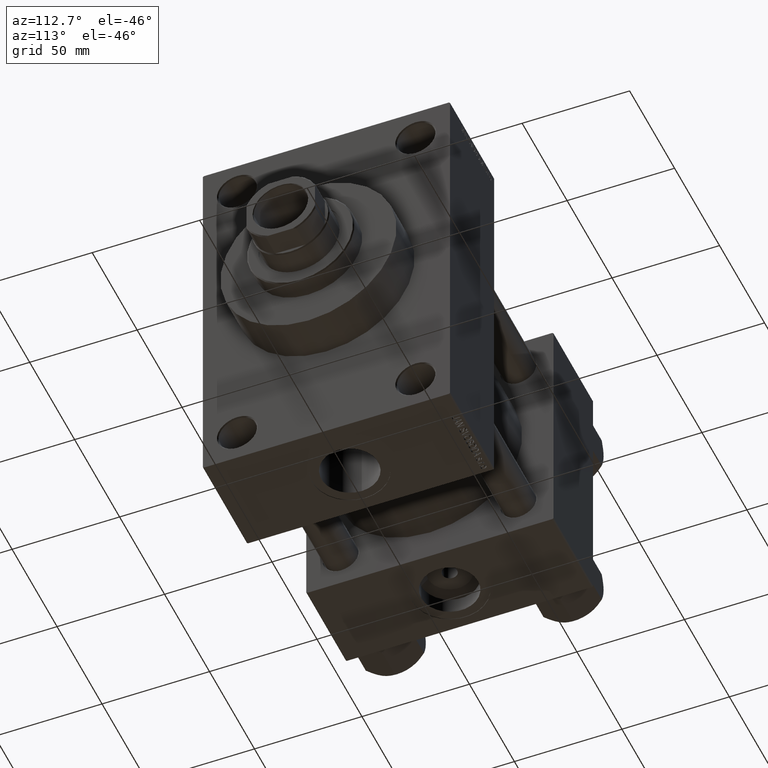
[diagram: clean part render]
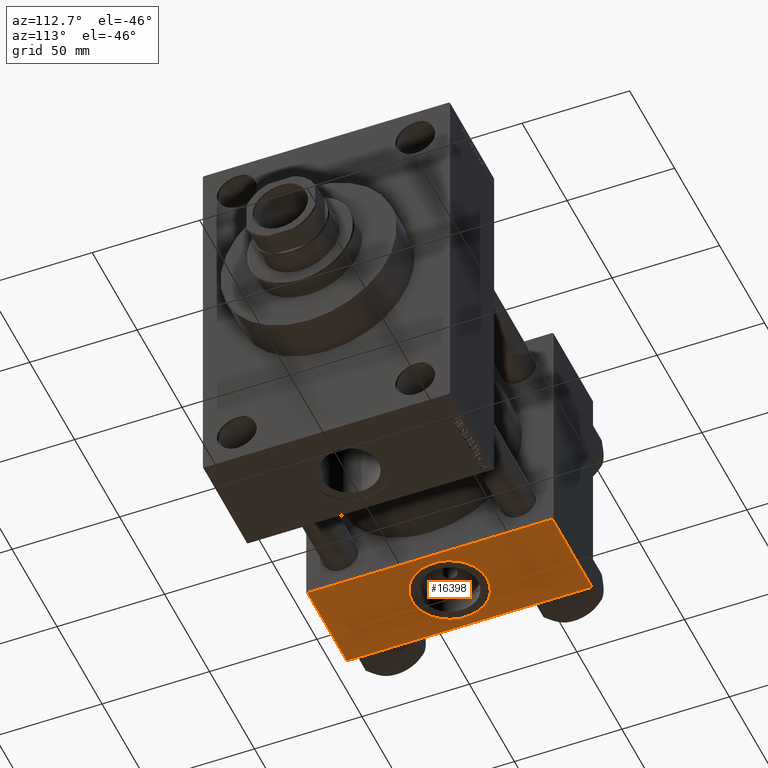
[diagram: same view with one face highlighted and labeled with its STEP entity id]
A machine part, auxiliary view. The second image highlights one B-rep face of the part: STEP entity #16398.
In plain terms, the highlighted planar face has unit normal (0, 0, -1).
Its self-contained STEP definition (entity closure, byte-faithful):
#276 = LINE ( 'NONE', #40757, #31373 ) ;
#5207 = CARTESIAN_POINT ( 'NONE',  ( 22.00000000000000711, 5.203591959484592459E-15, -57.50000000000000000 ) ) ;
#5987 = DIRECTION ( 'NONE',  ( 0.000000000000000000, 1.000000000000000000, 0.000000000000000000 ) ) ;
#7197 = VERTEX_POINT ( 'NONE', #31710 ) ;
#8561 = AXIS2_PLACEMENT_3D ( 'NONE', #5207, #37518, #19659 ) ;
#8641 = CARTESIAN_POINT ( 'NONE',  ( 44.00000000000000000, 57.50000000000000000, -57.49999999999999289 ) ) ;
#8864 = DIRECTION ( 'NONE',  ( 0.000000000000000000, -1.000000000000000000, -1.206764157201257291E-16 ) ) ;
#9604 = EDGE_CURVE ( 'NONE', #18269, #16209, #39346, .T. ) ;
#9824 = EDGE_CURVE ( 'NONE', #16209, #18269, #34735, .T. ) ;
#10944 = ORIENTED_EDGE ( 'NONE', *, *, #36697, .T. ) ;
#11385 = VERTEX_POINT ( 'NONE', #31240 ) ;
#11641 = CARTESIAN_POINT ( 'NONE',  ( 44.00000000000000000, -57.00000000000001421, -57.50000000000000711 ) ) ;
#12686 = ORIENTED_EDGE ( 'NONE', *, *, #9824, .F. ) ;
#14505 = CARTESIAN_POINT ( 'NONE',  ( 44.00000000000000000, 57.50000000000000000, -57.49999999999999289 ) ) ;
#14532 = CARTESIAN_POINT ( 'NONE',  ( 0.000000000000000000, 57.00000000000002842, -57.49999999999999289 ) ) ;
#16209 = VERTEX_POINT ( 'NONE', #44920 ) ;
#16398 = ADVANCED_FACE ( 'NONE', ( #32595, #32832 ), #47525, .T. ) ;
#17463 = EDGE_CURVE ( 'NONE', #26767, #7197, #20871, .T. ) ;
#18269 = VERTEX_POINT ( 'NONE', #39190 ) ;
#19146 = VECTOR ( 'NONE', #29788, 1000.000000000000000 ) ;
#19659 = DIRECTION ( 'NONE',  ( 0.000000000000000000, 1.000000000000000000, 0.000000000000000000 ) ) ;
#20330 = VERTEX_POINT ( 'NONE', #11641 ) ;
#20664 = DIRECTION ( 'NONE',  ( 0.000000000000000000, -1.000000000000000000, -1.206764157201257291E-16 ) ) ;
#20713 = LINE ( 'NONE', #28189, #25987 ) ;
#20871 = LINE ( 'NONE', #24495, #19146 ) ;
#21432 = EDGE_LOOP ( 'NONE', ( #12686, #31254 ) ) ;
#22437 = AXIS2_PLACEMENT_3D ( 'NONE', #42849, #38988, #5987 ) ;
#24495 = CARTESIAN_POINT ( 'NONE',  ( 44.00000000000000000, 57.00000000000002842, -57.49999999999999289 ) ) ;
#25987 = VECTOR ( 'NONE', #35405, 1000.000000000000000 ) ;
#26767 = VERTEX_POINT ( 'NONE', #14532 ) ;
#26932 = AXIS2_PLACEMENT_3D ( 'NONE', #14505, #29217, #43906 ) ;
#28106 = ORIENTED_EDGE ( 'NONE', *, *, #39518, .T. ) ;
#28189 = CARTESIAN_POINT ( 'NONE',  ( 0.000000000000000000, -57.00000000000001421, -57.50000000000000711 ) ) ;
#29217 = DIRECTION ( 'NONE',  ( 0.000000000000000000, 1.206764157201257291E-16, -1.000000000000000000 ) ) ;
#29564 = ORIENTED_EDGE ( 'NONE', *, *, #37673, .F. ) ;
#29788 = DIRECTION ( 'NONE',  ( 1.000000000000000000, 0.000000000000000000, 0.000000000000000000 ) ) ;
#31240 = CARTESIAN_POINT ( 'NONE',  ( 0.000000000000000000, -57.00000000000001421, -57.50000000000000711 ) ) ;
#31254 = ORIENTED_EDGE ( 'NONE', *, *, #9604, .F. ) ;
#31373 = VECTOR ( 'NONE', #8864, 1000.000000000000000 ) ;
#31710 = CARTESIAN_POINT ( 'NONE',  ( 44.00000000000000000, 57.00000000000002842, -57.49999999999999289 ) ) ;
#32595 = FACE_BOUND ( 'NONE', #21432, .T. ) ;
#32832 = FACE_OUTER_BOUND ( 'NONE', #36950, .T. ) ;
#33058 = ORIENTED_EDGE ( 'NONE', *, *, #17463, .T. ) ;
#34735 = CIRCLE ( 'NONE', #8561, 17.50000000000000355 ) ;
#35405 = DIRECTION ( 'NONE',  ( -1.000000000000000000, 0.000000000000000000, 0.000000000000000000 ) ) ;
#36697 = EDGE_CURVE ( 'NONE', #20330, #11385, #20713, .T. ) ;
#36950 = EDGE_LOOP ( 'NONE', ( #29564, #33058, #28106, #10944 ) ) ;
#37518 = DIRECTION ( 'NONE',  ( 0.000000000000000000, -1.734723475976806848E-16, -1.000000000000000000 ) ) ;
#37673 = EDGE_CURVE ( 'NONE', #26767, #11385, #276, .T. ) ;
#38988 = DIRECTION ( 'NONE',  ( 0.000000000000000000, -1.734723475976806848E-16, -1.000000000000000000 ) ) ;
#39190 = CARTESIAN_POINT ( 'NONE',  ( 22.00000000000001066, -17.50000000000000000, -57.50000000000000000 ) ) ;
#39346 = CIRCLE ( 'NONE', #22437, 17.50000000000000355 ) ;
#39518 = EDGE_CURVE ( 'NONE', #7197, #20330, #41642, .T. ) ;
#40757 = CARTESIAN_POINT ( 'NONE',  ( 0.000000000000000000, 57.50000000000000000, -57.49999999999999289 ) ) ;
#41642 = LINE ( 'NONE', #8641, #46719 ) ;
#42849 = CARTESIAN_POINT ( 'NONE',  ( 22.00000000000000711, 5.203591959484592459E-15, -57.50000000000000000 ) ) ;
#43906 = DIRECTION ( 'NONE',  ( 0.000000000000000000, 1.000000000000000000, 1.206764157201257291E-16 ) ) ;
#44920 = CARTESIAN_POINT ( 'NONE',  ( 22.00000000000000711, 17.50000000000000711, -57.50000000000000000 ) ) ;
#46719 = VECTOR ( 'NONE', #20664, 1000.000000000000000 ) ;
#47525 = PLANE ( 'NONE',  #26932 ) ;